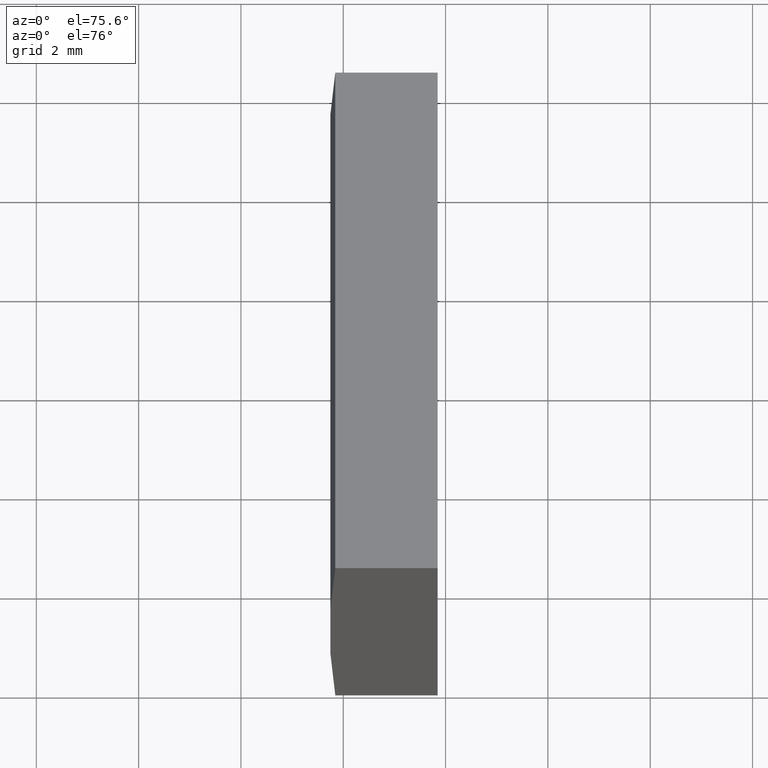
[diagram: clean part render]
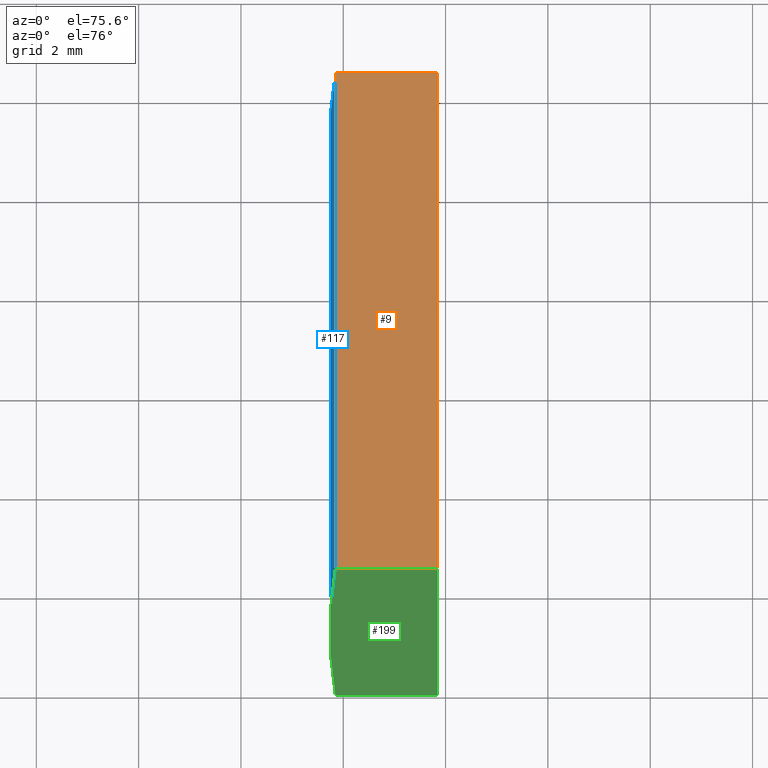
[diagram: same view with three faces highlighted in distinct colors, each labeled with its STEP entity id]
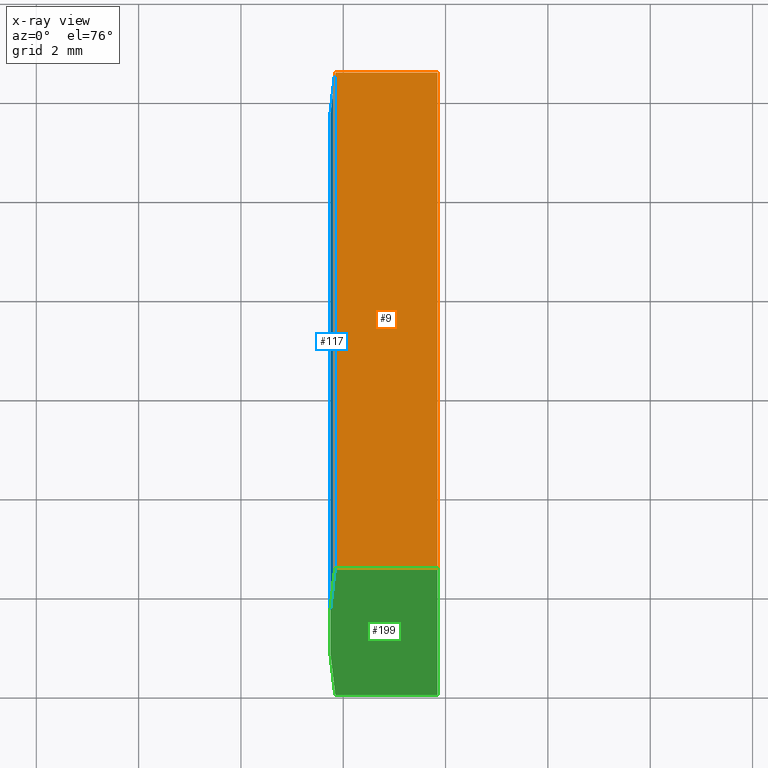
[diagram: x-ray of the same camera — body ghosted, the three highlighted faces saturated]
A machine part, auxiliary view with three faces highlighted in distinct colors.
The next image is the same camera in x-ray (body ghosted, the three faces saturated) — at least one of them is partly hidden behind the body in this view.
Their STEP definitions:

[orange] entity #9 — the highlighted planar face has unit normal (0, 0, -1).
#5 = VECTOR ( 'NONE', #111, 1000.000000000000000 ) ;
#8 = AXIS2_PLACEMENT_3D ( 'NONE', #90, #14, #36 ) ;
#9 = ADVANCED_FACE ( 'NONE', ( #169 ), #158, .F. ) ;
#13 = LINE ( 'NONE', #142, #128 ) ;
#14 = DIRECTION ( 'NONE',  ( 0.0000000000000000000, 0.0000000000000000000, -1.000000000000000000 ) ) ;
#20 = DIRECTION ( 'NONE',  ( -0.0000000000000000000, -1.000000000000000000, -0.0000000000000000000 ) ) ;
#21 = VECTOR ( 'NONE', #20, 1000.000000000000000 ) ;
#28 = LINE ( 'NONE', #93, #43 ) ;
#29 = VERTEX_POINT ( 'NONE', #82 ) ;
#36 = DIRECTION ( 'NONE',  ( -1.000000000000000000, 0.0000000000000000000, -0.0000000000000000000 ) ) ;
#43 = VECTOR ( 'NONE', #164, 1000.000000000000000 ) ;
#59 = ORIENTED_EDGE ( 'NONE', *, *, #129, .F. ) ;
#64 = CARTESIAN_POINT ( 'NONE',  ( -110.1556877235027200, 10.00000000000000000, 5.000000000000000000 ) ) ;
#71 = EDGE_CURVE ( 'NONE', #155, #183, #28, .T. ) ;
#72 = CARTESIAN_POINT ( 'NONE',  ( -110.1556877235027200, 0.0000000000000000000, 5.000000000000000000 ) ) ;
#81 = CARTESIAN_POINT ( 'NONE',  ( -108.1547956651487400, 10.00000000000000000, 5.000000000000000000 ) ) ;
#82 = CARTESIAN_POINT ( 'NONE',  ( -110.1556877235027200, 10.00000000000000000, 5.000000000000000000 ) ) ;
#84 = EDGE_CURVE ( 'NONE', #119, #183, #123, .T. ) ;
#90 = CARTESIAN_POINT ( 'NONE',  ( -110.1556877235027200, 10.00000000000000000, 5.000000000000000000 ) ) ;
#92 = DIRECTION ( 'NONE',  ( 1.000000000000000000, 0.0000000000000000000, 0.0000000000000000000 ) ) ;
#93 = CARTESIAN_POINT ( 'NONE',  ( -110.1556877235027200, 0.0000000000000000000, 5.000000000000000000 ) ) ;
#105 = EDGE_LOOP ( 'NONE', ( #126, #109, #59, #191 ) ) ;
#106 = EDGE_CURVE ( 'NONE', #29, #155, #197, .T. ) ;
#109 = ORIENTED_EDGE ( 'NONE', *, *, #84, .F. ) ;
#111 = DIRECTION ( 'NONE',  ( -0.0000000000000000000, -1.000000000000000000, -0.0000000000000000000 ) ) ;
#119 = VERTEX_POINT ( 'NONE', #81 ) ;
#123 = LINE ( 'NONE', #127, #5 ) ;
#126 = ORIENTED_EDGE ( 'NONE', *, *, #71, .T. ) ;
#127 = CARTESIAN_POINT ( 'NONE',  ( -108.1547956651487400, 10.00000000000000000, 5.000000000000000000 ) ) ;
#128 = VECTOR ( 'NONE', #92, 1000.000000000000000 ) ;
#129 = EDGE_CURVE ( 'NONE', #29, #119, #13, .T. ) ;
#142 = CARTESIAN_POINT ( 'NONE',  ( -110.1556877235027200, 10.00000000000000000, 5.000000000000000000 ) ) ;
#155 = VERTEX_POINT ( 'NONE', #72 ) ;
#158 = PLANE ( 'NONE',  #8 ) ;
#164 = DIRECTION ( 'NONE',  ( 1.000000000000000000, 0.0000000000000000000, 0.0000000000000000000 ) ) ;
#169 = FACE_OUTER_BOUND ( 'NONE', #105, .T. ) ;
#183 = VERTEX_POINT ( 'NONE', #202 ) ;
#191 = ORIENTED_EDGE ( 'NONE', *, *, #106, .T. ) ;
#197 = LINE ( 'NONE', #64, #21 ) ;
#202 = CARTESIAN_POINT ( 'NONE',  ( -108.1547956651487400, 0.0000000000000000000, 5.000000000000000000 ) ) ;

[blue] entity #117 — the highlighted cylindrical surface (partial cylindrical patch) has radius 114.62 mm, axis along (-0, -1, -0).
#4 = EDGE_CURVE ( 'NONE', #187, #155, #19, .T. ) ;
#6 = EDGE_LOOP ( 'NONE', ( #146, #99, #149, #138 ) ) ;
#19 = CIRCLE ( 'NONE', #122, 114.6199999999999900 ) ;
#20 = DIRECTION ( 'NONE',  ( -0.0000000000000000000, -1.000000000000000000, -0.0000000000000000000 ) ) ;
#21 = VECTOR ( 'NONE', #20, 1000.000000000000000 ) ;
#29 = VERTEX_POINT ( 'NONE', #82 ) ;
#46 = CYLINDRICAL_SURFACE ( 'NONE', #86, 114.6199999999999900 ) ;
#49 = CARTESIAN_POINT ( 'NONE',  ( 4.355204334851265500, 0.0000000000000000000, 4.286263797015675000E-017 ) ) ;
#55 = CARTESIAN_POINT ( 'NONE',  ( 4.355204334851265500, 10.00000000000000000, 4.286263797015675000E-017 ) ) ;
#58 = DIRECTION ( 'NONE',  ( -0.0000000000000000000, -1.000000000000000000, -0.0000000000000000000 ) ) ;
#64 = CARTESIAN_POINT ( 'NONE',  ( -110.1556877235027200, 10.00000000000000000, 5.000000000000000000 ) ) ;
#66 = FACE_OUTER_BOUND ( 'NONE', #6, .T. ) ;
#72 = CARTESIAN_POINT ( 'NONE',  ( -110.1556877235027200, 0.0000000000000000000, 5.000000000000000000 ) ) ;
#73 = VECTOR ( 'NONE', #58, 1000.000000000000000 ) ;
#82 = CARTESIAN_POINT ( 'NONE',  ( -110.1556877235027200, 10.00000000000000000, 5.000000000000000000 ) ) ;
#85 = CARTESIAN_POINT ( 'NONE',  ( -110.1556877235027200, 10.00000000000000000, -5.000000000000000000 ) ) ;
#86 = AXIS2_PLACEMENT_3D ( 'NONE', #55, #175, #163 ) ;
#99 = ORIENTED_EDGE ( 'NONE', *, *, #106, .F. ) ;
#104 = VERTEX_POINT ( 'NONE', #152 ) ;
#106 = EDGE_CURVE ( 'NONE', #29, #155, #197, .T. ) ;
#107 = LINE ( 'NONE', #85, #73 ) ;
#110 = EDGE_CURVE ( 'NONE', #104, #29, #124, .T. ) ;
#117 = ADVANCED_FACE ( 'NONE', ( #66 ), #46, .T. ) ;
#122 = AXIS2_PLACEMENT_3D ( 'NONE', #49, #151, #133 ) ;
#124 = CIRCLE ( 'NONE', #135, 114.6199999999999900 ) ;
#133 = DIRECTION ( 'NONE',  ( 0.0000000000000000000, 0.0000000000000000000, 1.000000000000000000 ) ) ;
#135 = AXIS2_PLACEMENT_3D ( 'NONE', #185, #153, #161 ) ;
#138 = ORIENTED_EDGE ( 'NONE', *, *, #171, .T. ) ;
#146 = ORIENTED_EDGE ( 'NONE', *, *, #4, .T. ) ;
#149 = ORIENTED_EDGE ( 'NONE', *, *, #110, .F. ) ;
#151 = DIRECTION ( 'NONE',  ( 0.0000000000000000000, 1.000000000000000000, 0.0000000000000000000 ) ) ;
#152 = CARTESIAN_POINT ( 'NONE',  ( -110.1556877235027200, 10.00000000000000000, -5.000000000000000000 ) ) ;
#153 = DIRECTION ( 'NONE',  ( 0.0000000000000000000, 1.000000000000000000, 0.0000000000000000000 ) ) ;
#155 = VERTEX_POINT ( 'NONE', #72 ) ;
#161 = DIRECTION ( 'NONE',  ( 0.0000000000000000000, 0.0000000000000000000, 1.000000000000000000 ) ) ;
#163 = DIRECTION ( 'NONE',  ( 0.0000000000000000000, 0.0000000000000000000, -1.000000000000000000 ) ) ;
#171 = EDGE_CURVE ( 'NONE', #104, #187, #107, .T. ) ;
#175 = DIRECTION ( 'NONE',  ( -0.0000000000000000000, -1.000000000000000000, -0.0000000000000000000 ) ) ;
#179 = CARTESIAN_POINT ( 'NONE',  ( -110.1556877235027200, 0.0000000000000000000, -5.000000000000000000 ) ) ;
#185 = CARTESIAN_POINT ( 'NONE',  ( 4.355204334851265500, 10.00000000000000000, 4.286263797015675000E-017 ) ) ;
#187 = VERTEX_POINT ( 'NONE', #179 ) ;
#197 = LINE ( 'NONE', #64, #21 ) ;

[green] entity #199 — the highlighted planar face has unit normal (0, 1, 0).
#4 = EDGE_CURVE ( 'NONE', #187, #155, #19, .T. ) ;
#12 = ORIENTED_EDGE ( 'NONE', *, *, #18, .F. ) ;
#18 = EDGE_CURVE ( 'NONE', #183, #48, #190, .T. ) ;
#19 = CIRCLE ( 'NONE', #122, 114.6199999999999900 ) ;
#23 = DIRECTION ( 'NONE',  ( 0.0000000000000000000, 1.000000000000000000, 0.0000000000000000000 ) ) ;
#27 = EDGE_CURVE ( 'NONE', #48, #187, #91, .T. ) ;
#28 = LINE ( 'NONE', #93, #43 ) ;
#37 = EDGE_LOOP ( 'NONE', ( #194, #100, #12, #165 ) ) ;
#43 = VECTOR ( 'NONE', #164, 1000.000000000000000 ) ;
#45 = DIRECTION ( 'NONE',  ( -1.000000000000000000, -0.0000000000000000000, -6.068825292768200200E-015 ) ) ;
#48 = VERTEX_POINT ( 'NONE', #132 ) ;
#49 = CARTESIAN_POINT ( 'NONE',  ( 4.355204334851265500, 0.0000000000000000000, 4.286263797015675000E-017 ) ) ;
#65 = AXIS2_PLACEMENT_3D ( 'NONE', #116, #23, #147 ) ;
#71 = EDGE_CURVE ( 'NONE', #155, #183, #28, .T. ) ;
#72 = CARTESIAN_POINT ( 'NONE',  ( -110.1556877235027200, 0.0000000000000000000, 5.000000000000000000 ) ) ;
#75 = DIRECTION ( 'NONE',  ( -0.0000000000000000000, -0.0000000000000000000, -1.000000000000000000 ) ) ;
#77 = CARTESIAN_POINT ( 'NONE',  ( -108.1547956651487400, 0.0000000000000000000, -4.999999999999987600 ) ) ;
#91 = LINE ( 'NONE', #201, #130 ) ;
#93 = CARTESIAN_POINT ( 'NONE',  ( -110.1556877235027200, 0.0000000000000000000, 5.000000000000000000 ) ) ;
#100 = ORIENTED_EDGE ( 'NONE', *, *, #27, .F. ) ;
#116 = CARTESIAN_POINT ( 'NONE',  ( 4.355204334851265500, 0.0000000000000000000, 4.286263797015675000E-017 ) ) ;
#122 = AXIS2_PLACEMENT_3D ( 'NONE', #49, #151, #133 ) ;
#130 = VECTOR ( 'NONE', #45, 1000.000000000000000 ) ;
#132 = CARTESIAN_POINT ( 'NONE',  ( -108.1547956651487400, 0.0000000000000000000, -4.999999999999987600 ) ) ;
#133 = DIRECTION ( 'NONE',  ( 0.0000000000000000000, 0.0000000000000000000, 1.000000000000000000 ) ) ;
#147 = DIRECTION ( 'NONE',  ( 0.0000000000000000000, -0.0000000000000000000, 1.000000000000000000 ) ) ;
#148 = VECTOR ( 'NONE', #75, 1000.000000000000000 ) ;
#151 = DIRECTION ( 'NONE',  ( 0.0000000000000000000, 1.000000000000000000, 0.0000000000000000000 ) ) ;
#155 = VERTEX_POINT ( 'NONE', #72 ) ;
#164 = DIRECTION ( 'NONE',  ( 1.000000000000000000, 0.0000000000000000000, 0.0000000000000000000 ) ) ;
#165 = ORIENTED_EDGE ( 'NONE', *, *, #71, .F. ) ;
#178 = FACE_OUTER_BOUND ( 'NONE', #37, .T. ) ;
#179 = CARTESIAN_POINT ( 'NONE',  ( -110.1556877235027200, 0.0000000000000000000, -5.000000000000000000 ) ) ;
#183 = VERTEX_POINT ( 'NONE', #202 ) ;
#187 = VERTEX_POINT ( 'NONE', #179 ) ;
#190 = LINE ( 'NONE', #77, #148 ) ;
#194 = ORIENTED_EDGE ( 'NONE', *, *, #4, .F. ) ;
#195 = PLANE ( 'NONE',  #65 ) ;
#199 = ADVANCED_FACE ( 'NONE', ( #178 ), #195, .F. ) ;
#201 = CARTESIAN_POINT ( 'NONE',  ( -110.1556877235027200, 0.0000000000000000000, -5.000000000000000000 ) ) ;
#202 = CARTESIAN_POINT ( 'NONE',  ( -108.1547956651487400, 0.0000000000000000000, 5.000000000000000000 ) ) ;